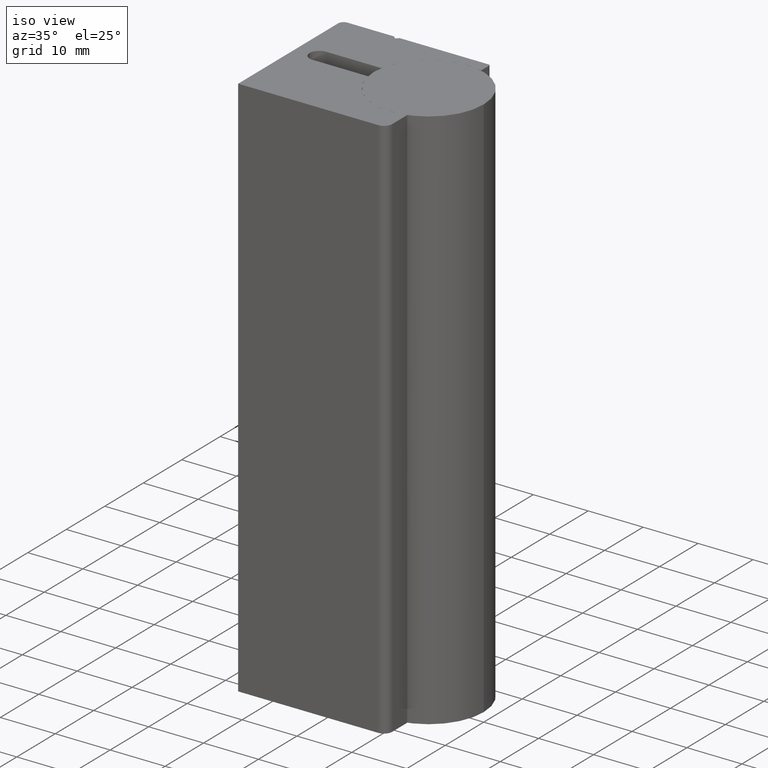
[diagram: clean part render]
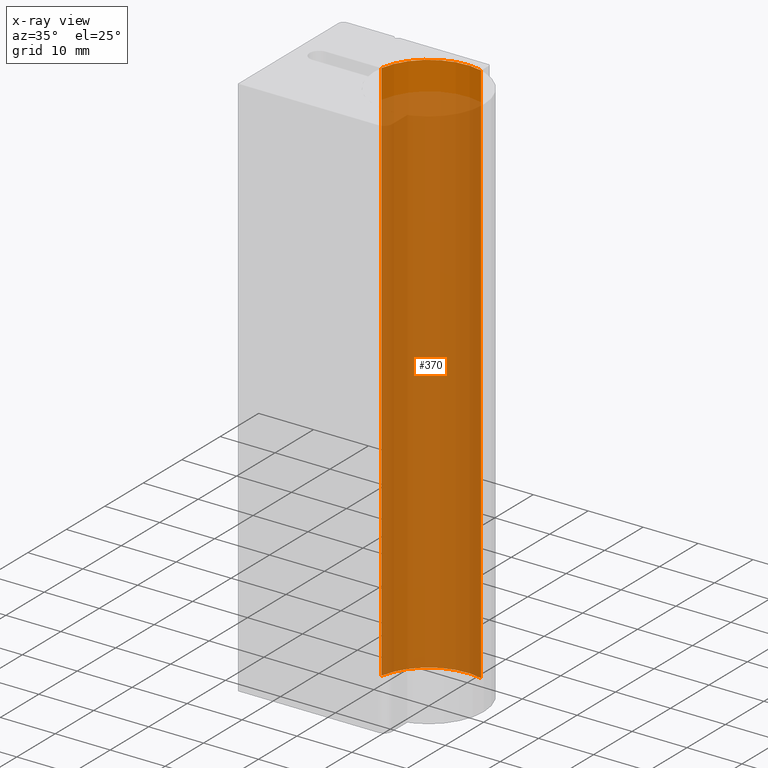
[diagram: x-ray — body ghosted, one internal face saturated and labeled with its STEP entity id]
A machine part, iso view, then the same camera in x-ray: the body is ghosted and one INTERNAL B-rep face — a face not visible from any outside direction — is saturated and labeled: STEP entity #370.
In plain terms, the highlighted cylindrical surface (partial cylindrical patch) has radius 10 mm, axis along (0, 0, 1).
Its self-contained STEP definition (entity closure, byte-faithful):
#29=CIRCLE('',#460,10.);
#30=CIRCLE('',#461,10.);
#42=CYLINDRICAL_SURFACE('',#459,10.);
#53=FACE_OUTER_BOUND('',#74,.T.);
#74=EDGE_LOOP('',(#269,#270,#271,#272));
#103=LINE('',#641,#140);
#104=LINE('',#647,#141);
#140=VECTOR('',#521,10.);
#141=VECTOR('',#528,10.);
#174=VERTEX_POINT('',#637);
#175=VERTEX_POINT('',#639);
#176=VERTEX_POINT('',#643);
#177=VERTEX_POINT('',#645);
#213=EDGE_CURVE('',#174,#175,#103,.T.);
#214=EDGE_CURVE('',#176,#174,#29,.T.);
#215=EDGE_CURVE('',#177,#175,#30,.T.);
#216=EDGE_CURVE('',#176,#177,#104,.T.);
#269=ORIENTED_EDGE('',*,*,#214,.T.);
#270=ORIENTED_EDGE('',*,*,#213,.T.);
#271=ORIENTED_EDGE('',*,*,#215,.F.);
#272=ORIENTED_EDGE('',*,*,#216,.F.);
#370=ADVANCED_FACE('',(#53),#42,.F.);
#459=AXIS2_PLACEMENT_3D('',#642,#522,#523);
#460=AXIS2_PLACEMENT_3D('',#644,#524,#525);
#461=AXIS2_PLACEMENT_3D('',#646,#526,#527);
#521=DIRECTION('',(0.,0.,1.));
#522=DIRECTION('center_axis',(0.,0.,1.));
#523=DIRECTION('ref_axis',(-0.280000000009252,-0.959999999997301,0.));
#524=DIRECTION('center_axis',(0.,0.,-1.));
#525=DIRECTION('ref_axis',(-0.280000000009252,-0.959999999997301,0.));
#526=DIRECTION('center_axis',(0.,0.,-1.));
#527=DIRECTION('ref_axis',(-0.280000000009252,-0.959999999997301,0.));
#528=DIRECTION('',(0.,0.,1.));
#637=CARTESIAN_POINT('',(2.80000000009254,9.59999999997308,0.));
#639=CARTESIAN_POINT('',(2.80000000009254,9.59999999997308,100.));
#641=CARTESIAN_POINT('',(2.80000000009254,9.59999999997308,0.));
#642=CARTESIAN_POINT('Origin',(0.,0.,0.));
#643=CARTESIAN_POINT('',(-9.84568433375761,1.74999999999999,0.));
#644=CARTESIAN_POINT('Origin',(0.,0.,0.));
#645=CARTESIAN_POINT('',(-9.84568433375761,1.74999999999999,100.));
#646=CARTESIAN_POINT('Origin',(0.,0.,100.));
#647=CARTESIAN_POINT('',(-9.84568433375761,1.74999999999999,0.));